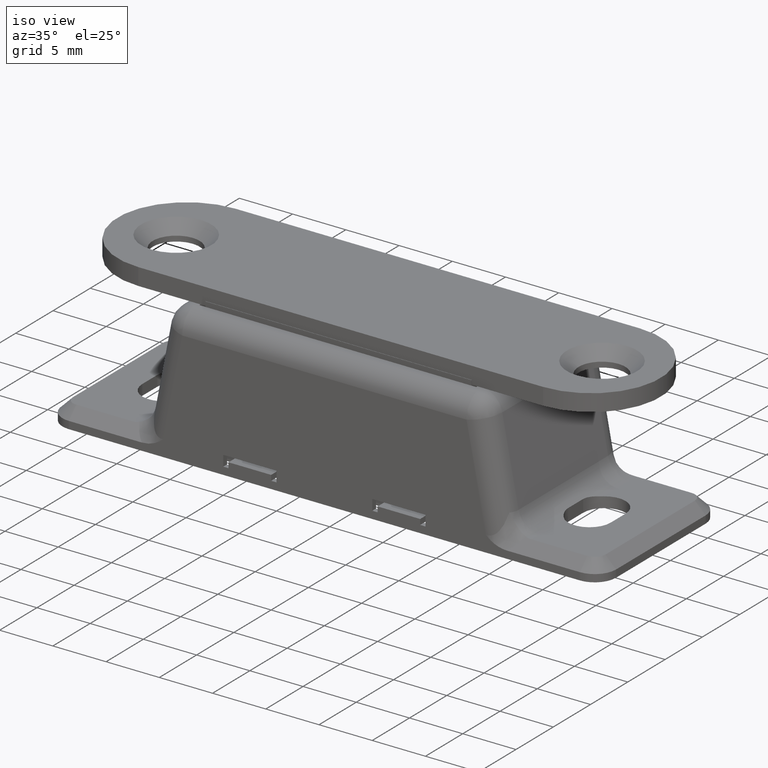
[diagram: clean part render]
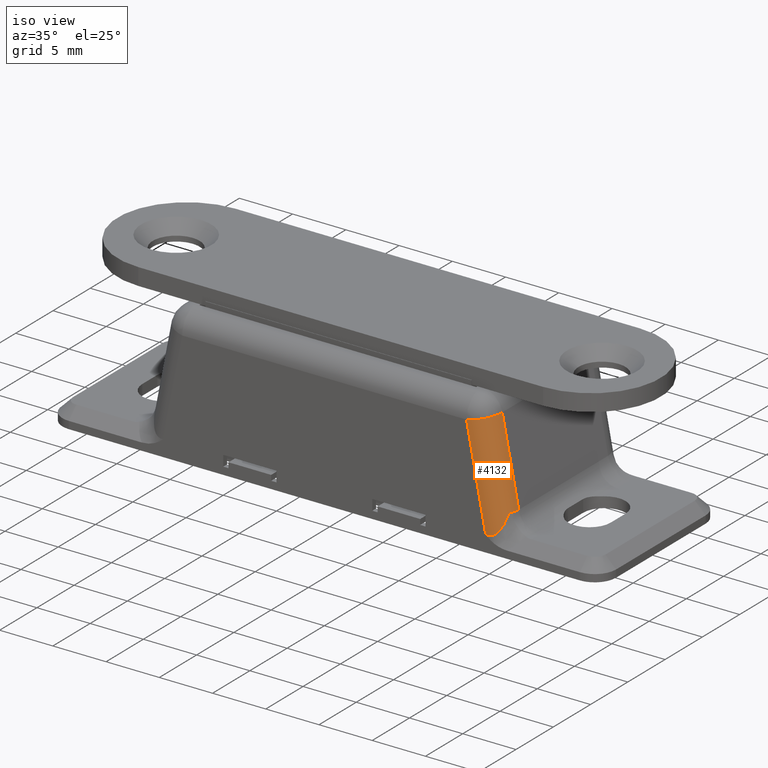
[diagram: same view with one face highlighted and labeled with its STEP entity id]
A machine part, iso view. The second image highlights one B-rep face of the part: STEP entity #4132.
In plain terms, the highlighted cylindrical surface (edge-blend (fillet) strip) has radius 2 mm, axis along (-0.1908, 0, 0.9816).
Its self-contained STEP definition (entity closure, byte-faithful):
#84=ELLIPSE('',#4439,4.60533153492509,2.);
#85=ELLIPSE('',#4440,2.14581902155977,2.);
#189=CYLINDRICAL_SURFACE('',#4438,2.);
#268=CIRCLE('',#4432,2.);
#408=FACE_OUTER_BOUND('',#647,.T.);
#647=EDGE_LOOP('',(#3160,#3161,#3162,#3163,#3164));
#972=LINE('',#6629,#1412);
#975=LINE('',#6635,#1415);
#1412=VECTOR('',#5122,8.01040977073295);
#1415=VECTOR('',#5127,9.44510607651499);
#1847=VERTEX_POINT('',#6614);
#1848=VERTEX_POINT('',#6618);
#1850=VERTEX_POINT('',#6628);
#1852=VERTEX_POINT('',#6634);
#1853=VERTEX_POINT('',#6636);
#2330=EDGE_CURVE('',#1847,#1848,#268,.T.);
#2334=EDGE_CURVE('',#1850,#1848,#972,.T.);
#2337=EDGE_CURVE('',#1847,#1852,#975,.T.);
#2338=EDGE_CURVE('',#1853,#1852,#84,.T.);
#2339=EDGE_CURVE('',#1850,#1853,#85,.T.);
#3160=ORIENTED_EDGE('',*,*,#2330,.F.);
#3161=ORIENTED_EDGE('',*,*,#2337,.T.);
#3162=ORIENTED_EDGE('',*,*,#2338,.F.);
#3163=ORIENTED_EDGE('',*,*,#2339,.F.);
#3164=ORIENTED_EDGE('',*,*,#2334,.T.);
#4132=ADVANCED_FACE('',(#408),#189,.T.);
#4432=AXIS2_PLACEMENT_3D('',#6620,#5109,#5110);
#4438=AXIS2_PLACEMENT_3D('',#6633,#5125,#5126);
#4439=AXIS2_PLACEMENT_3D('',#6637,#5128,#5129);
#4440=AXIS2_PLACEMENT_3D('',#6638,#5130,#5131);
#5109=DIRECTION('center_axis',(-0.190808995376564,0.,0.98162718344766));
#5110=DIRECTION('ref_axis',(0.694115238012891,-0.707106781186548,0.134922334542161));
#5122=DIRECTION('',(-0.190808995376564,0.,0.98162718344766));
#5125=DIRECTION('center_axis',(-0.190808995376564,0.,0.98162718344766));
#5126=DIRECTION('ref_axis',(0.694115238012891,-0.707106781186548,0.134922334542161));
#5127=DIRECTION('',(0.190808995376564,0.,-0.98162718344766));
#5128=DIRECTION('center_axis',(-0.0828643905132753,0.884815077680864,-0.458514744684913));
#5129=DIRECTION('ref_axis',(0.251777030870389,-0.426583154923028,-0.868697380370176));
#5130=DIRECTION('center_axis',(-0.177842579881569,1.97444926943257E-16,
-0.984058949850601));
#5131=DIRECTION('ref_axis',(0.984058949850601,-1.03477787592557E-15,-0.177842579881569));
#6614=CARTESIAN_POINT('',(13.351327228365,-8.,10.8));
#6618=CARTESIAN_POINT('',(15.3145815952604,-6.,11.1816179907531));
#6620=CARTESIAN_POINT('Origin',(13.351327228365,-6.,10.8));
#6628=CARTESIAN_POINT('',(16.8430398361685,-6.,3.31838200924689));
#6629=CARTESIAN_POINT('',(15.3263100040909,-6.,11.121280558003));
#6633=CARTESIAN_POINT('Origin',(13.3630556371956,-6.,10.7396625672498));
#6634=CARTESIAN_POINT('',(15.1535384300499,-8.,1.52842712474621));
#6635=CARTESIAN_POINT('',(13.3630556371956,-8.,10.7396625672498));
#6636=CARTESIAN_POINT('',(16.6095204685377,-6.9142135623731,3.3605844472188));
#6637=CARTESIAN_POINT('Origin',(14.376017193499,-6.,5.52842712474621));
#6638=CARTESIAN_POINT('Origin',(14.731427423243,-6.,3.70000000000002));